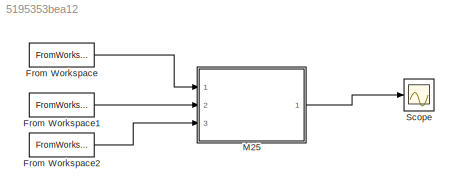
MODEL slx_5195353bea12
KIND model
CONFIG AbsTol = auto
CONFIG EnableMultiTasking = off
CONFIG FixedStep = auto
CONFIG MaxStep = auto
CONFIG MinStep = auto
CONFIG RelTol = 1e-3
CONFIG SampleTimeConstraint = Unconstrained
CONFIG Solver = VariableStepAuto
CONFIG SolverName = VariableStepAuto
CONFIG StartTime = 0.0
CONFIG StopTime = 10.0
BLOCK [FromWorkspace] From Workspace
  SampleTime = 0
  VariableName = Val1
  ZeroCross = on
BLOCK [FromWorkspace] From Workspace1
  SampleTime = 0
  VariableName = Val2
  ZeroCross = on
BLOCK [FromWorkspace] From Workspace2
  SampleTime = 0
  VariableName = Val3
  ZeroCross = on
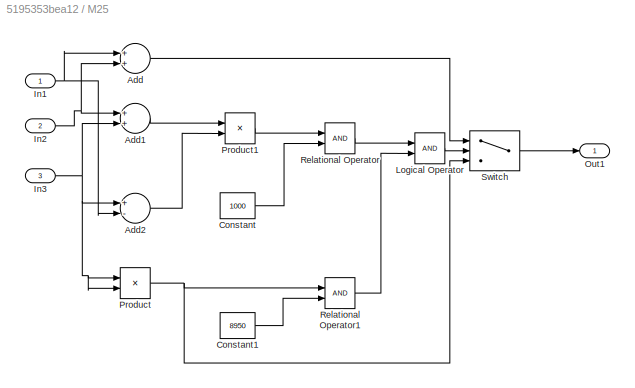
BLOCK [SubSystem] M25
  Ports = [3, 1]
  RequestExecContextInheritance = off
  Variant = off
BLOCK [Sum] M25/Add
  InputSameDT = off
  OutDataTypeStr = Inherit: Inherit via internal rule
  Ports = [2, 1]
  SaturateOnIntegerOverflow = off
BLOCK [Sum] M25/Add1
  InputSameDT = off
  OutDataTypeStr = Inherit: Inherit via internal rule
  Ports = [2, 1]
  SaturateOnIntegerOverflow = off
BLOCK [Sum] M25/Add2
  InputSameDT = off
  Inputs = +-
  OutDataTypeStr = Inherit: Inherit via internal rule
  Ports = [2, 1]
  SaturateOnIntegerOverflow = off
BLOCK [Constant] M25/Constant
  Value = 1000
BLOCK [Constant] M25/Constant1
  Value = 8950
BLOCK [Inport] M25/In1
  IconDisplay = Port number
BLOCK [Inport] M25/In2
  IconDisplay = Port number
  Port = 2
BLOCK [Inport] M25/In3
  IconDisplay = Port number
  Port = 3
BLOCK [Logic] M25/Logical Operator
  AllPortsSameDT = off
  OutDataTypeStr = boolean
  Ports = [2, 1]
BLOCK [Outport] M25/Out1
  IconDisplay = Port number
BLOCK [Product] M25/Product
  InputSameDT = off
  OutDataTypeStr = Inherit: Inherit via internal rule
  Ports = [2, 1]
  RndMeth = Floor
  SaturateOnIntegerOverflow = off
BLOCK [Product] M25/Product1
  InputSameDT = off
  OutDataTypeStr = Inherit: Inherit via internal rule
  Ports = [2, 1]
  RndMeth = Floor
  SaturateOnIntegerOverflow = off
BLOCK [RelationalOperator] M25/Relational Operator
  InputSameDT = off
  OutDataTypeStr = boolean
  Ports = [2, 1]
BLOCK [RelationalOperator] M25/Relational Operator1
  InputSameDT = off
  OutDataTypeStr = boolean
  Ports = [2, 1]
BLOCK [Switch] M25/Switch
  InputSameDT = off
  SaturateOnIntegerOverflow = off
  Threshold = 1
BLOCK [Scope] Scope
  NumInputPorts = 1
  Ports = [1]
  ScopeSpecificationString = Simulink.scopes.TimeScopeBlockCfg('CurrentConfiguration', extmgr.ConfigurationSet(extmgr.Configuration('Core','General UI',true),extmgr.Configuration('Core','Source UI',true),extmgr.Configuration('Sources','WiredSimulink',true),extmgr.Configuration('Visuals','Time Domain',true),extmgr.Configuration('Tools','Plot Navigation',true),extmgr.Configuration('Tools','Measurements',true)),'Version','2017b'...<+1ch>
LINE From Workspace1:1 -> M25:2
LINE From Workspace2:1 -> M25:3
LINE From Workspace:1 -> M25:1
LINE M25/Add1:1 -> M25/Product1:1
LINE M25/Add2:1 -> M25/Product1:2
LINE M25/Add:1 -> M25/Switch:1
LINE M25/Constant1:1 -> M25/Relational Operator1:2
LINE M25/Constant:1 -> M25/Relational Operator:2
NET M25/In1:1 -> M25/Add2:2, M25/Add:1
NET M25/In2:1 -> M25/Add1:1, M25/Add:2
NET M25/In3:1 -> M25/Add1:2, M25/Add2:1, M25/Product:1, M25/Product:2
LINE M25/Logical Operator:1 -> M25/Switch:2
LINE M25/Product1:1 -> M25/Relational Operator:1
NET M25/Product:1 -> M25/Relational Operator1:1, M25/Switch:3
LINE M25/Relational Operator1:1 -> M25/Logical Operator:2
LINE M25/Relational Operator:1 -> M25/Logical Operator:1
LINE M25/Switch:1 -> M25/Out1:1
LINE M25:1 -> Scope:1
note: NET lines group one-source signal fan-out (src -> all destinations, sorted); 1:1 wires keep LINE
